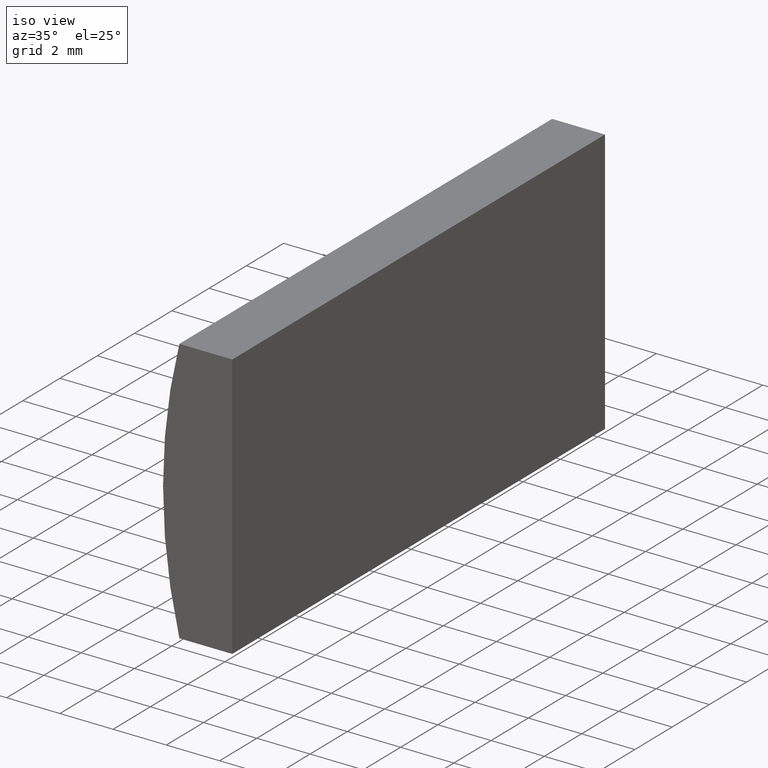
[diagram: clean part render]
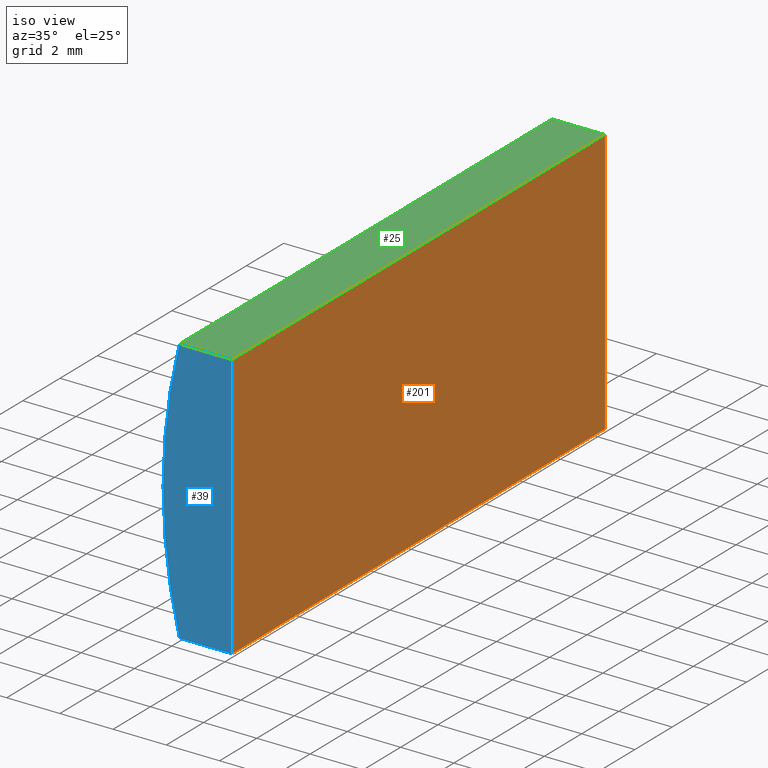
[diagram: same view with three faces highlighted in distinct colors, each labeled with its STEP entity id]
A machine part, iso view with three faces highlighted in distinct colors.
Their STEP definitions:

[orange] entity #201 — the highlighted planar face has unit normal (-1, 0, 0).
#7 = VECTOR ( 'NONE', #35, 1000.000000000000000 ) ;
#11 = VECTOR ( 'NONE', #164, 1000.000000000000000 ) ;
#12 = VECTOR ( 'NONE', #42, 1000.000000000000000 ) ;
#21 = ORIENTED_EDGE ( 'NONE', *, *, #129, .F. ) ;
#35 = DIRECTION ( 'NONE',  ( -3.469446951953616700E-016, -0.0000000000000000000, -1.000000000000000000 ) ) ;
#36 = FACE_OUTER_BOUND ( 'NONE', #91, .T. ) ;
#41 = LINE ( 'NONE', #126, #11 ) ;
#42 = DIRECTION ( 'NONE',  ( -0.0000000000000000000, -1.000000000000000000, -0.0000000000000000000 ) ) ;
#44 = LINE ( 'NONE', #80, #187 ) ;
#53 = LINE ( 'NONE', #103, #7 ) ;
#55 = VERTEX_POINT ( 'NONE', #176 ) ;
#61 = CARTESIAN_POINT ( 'NONE',  ( -13.72479566514874000, 20.00000000000000000, -4.999999999999992900 ) ) ;
#64 = CARTESIAN_POINT ( 'NONE',  ( -13.72479566514874000, 20.00000000000000000, -4.999999999999992900 ) ) ;
#71 = LINE ( 'NONE', #61, #12 ) ;
#75 = DIRECTION ( 'NONE',  ( 3.469446951953616700E-016, 0.0000000000000000000, 1.000000000000000000 ) ) ;
#77 = VERTEX_POINT ( 'NONE', #86 ) ;
#80 = CARTESIAN_POINT ( 'NONE',  ( -13.72479566514874000, 20.00000000000000000, -4.999999999999992900 ) ) ;
#86 = CARTESIAN_POINT ( 'NONE',  ( -13.72479566514873600, 20.00000000000000000, 5.000000000000000000 ) ) ;
#91 = EDGE_LOOP ( 'NONE', ( #151, #21, #136, #203 ) ) ;
#102 = VERTEX_POINT ( 'NONE', #179 ) ;
#103 = CARTESIAN_POINT ( 'NONE',  ( -13.72479566514874000, 0.0000000000000000000, -4.999999999999992900 ) ) ;
#123 = PLANE ( 'NONE',  #166 ) ;
#126 = CARTESIAN_POINT ( 'NONE',  ( -13.72479566514873600, 20.00000000000000000, 5.000000000000000000 ) ) ;
#129 = EDGE_CURVE ( 'NONE', #194, #55, #71, .T. ) ;
#130 = EDGE_CURVE ( 'NONE', #77, #102, #41, .T. ) ;
#136 = ORIENTED_EDGE ( 'NONE', *, *, #189, .F. ) ;
#147 = EDGE_CURVE ( 'NONE', #102, #55, #53, .T. ) ;
#151 = ORIENTED_EDGE ( 'NONE', *, *, #147, .T. ) ;
#155 = CARTESIAN_POINT ( 'NONE',  ( -13.72479566514874000, 20.00000000000000000, -4.999999999999992900 ) ) ;
#164 = DIRECTION ( 'NONE',  ( -0.0000000000000000000, -1.000000000000000000, -0.0000000000000000000 ) ) ;
#166 = AXIS2_PLACEMENT_3D ( 'NONE', #64, #170, #75 ) ;
#170 = DIRECTION ( 'NONE',  ( -1.000000000000000000, 0.0000000000000000000, 3.469446951953616700E-016 ) ) ;
#176 = CARTESIAN_POINT ( 'NONE',  ( -13.72479566514874000, 0.0000000000000000000, -4.999999999999992900 ) ) ;
#179 = CARTESIAN_POINT ( 'NONE',  ( -13.72479566514873600, 0.0000000000000000000, 5.000000000000000000 ) ) ;
#187 = VECTOR ( 'NONE', #191, 1000.000000000000000 ) ;
#189 = EDGE_CURVE ( 'NONE', #77, #194, #44, .T. ) ;
#191 = DIRECTION ( 'NONE',  ( -3.469446951953616700E-016, -0.0000000000000000000, -1.000000000000000000 ) ) ;
#194 = VERTEX_POINT ( 'NONE', #155 ) ;
#201 = ADVANCED_FACE ( 'NONE', ( #36 ), #123, .F. ) ;
#203 = ORIENTED_EDGE ( 'NONE', *, *, #130, .T. ) ;

[blue] entity #39 — the highlighted planar face has unit normal (0, 1, 0).
#1 = LINE ( 'NONE', #3, #178 ) ;
#3 = CARTESIAN_POINT ( 'NONE',  ( -15.71124527637792300, 0.0000000000000000000, 5.000000000000000000 ) ) ;
#7 = VECTOR ( 'NONE', #35, 1000.000000000000000 ) ;
#9 = CARTESIAN_POINT ( 'NONE',  ( -15.71124527637792000, 0.0000000000000000000, -5.000000000000000000 ) ) ;
#29 = FACE_OUTER_BOUND ( 'NONE', #105, .T. ) ;
#32 = VERTEX_POINT ( 'NONE', #183 ) ;
#35 = DIRECTION ( 'NONE',  ( -3.469446951953616700E-016, -0.0000000000000000000, -1.000000000000000000 ) ) ;
#37 = ORIENTED_EDGE ( 'NONE', *, *, #147, .F. ) ;
#38 = DIRECTION ( 'NONE',  ( 0.0000000000000000000, 1.000000000000000000, 0.0000000000000000000 ) ) ;
#39 = ADVANCED_FACE ( 'NONE', ( #29 ), #197, .F. ) ;
#49 = VERTEX_POINT ( 'NONE', #148 ) ;
#51 = DIRECTION ( 'NONE',  ( 1.000000000000000000, 0.0000000000000000000, 0.0000000000000000000 ) ) ;
#53 = LINE ( 'NONE', #103, #7 ) ;
#55 = VERTEX_POINT ( 'NONE', #176 ) ;
#60 = CARTESIAN_POINT ( 'NONE',  ( 4.355204334851265500, 0.0000000000000000000, 4.286263797015675000E-017 ) ) ;
#66 = EDGE_CURVE ( 'NONE', #55, #49, #93, .T. ) ;
#73 = CIRCLE ( 'NONE', #116, 20.68000000000000000 ) ;
#87 = EDGE_CURVE ( 'NONE', #32, #102, #1, .T. ) ;
#93 = LINE ( 'NONE', #9, #144 ) ;
#100 = DIRECTION ( 'NONE',  ( 0.0000000000000000000, 0.0000000000000000000, 1.000000000000000000 ) ) ;
#102 = VERTEX_POINT ( 'NONE', #179 ) ;
#103 = CARTESIAN_POINT ( 'NONE',  ( -13.72479566514874000, 0.0000000000000000000, -4.999999999999992900 ) ) ;
#105 = EDGE_LOOP ( 'NONE', ( #167, #162, #37, #171 ) ) ;
#116 = AXIS2_PLACEMENT_3D ( 'NONE', #60, #165, #100 ) ;
#141 = EDGE_CURVE ( 'NONE', #49, #32, #73, .T. ) ;
#144 = VECTOR ( 'NONE', #168, 1000.000000000000000 ) ;
#145 = AXIS2_PLACEMENT_3D ( 'NONE', #156, #38, #180 ) ;
#147 = EDGE_CURVE ( 'NONE', #102, #55, #53, .T. ) ;
#148 = CARTESIAN_POINT ( 'NONE',  ( -15.71124527637792000, 0.0000000000000000000, -5.000000000000000000 ) ) ;
#156 = CARTESIAN_POINT ( 'NONE',  ( 4.355204334851265500, 0.0000000000000000000, 4.286263797015675000E-017 ) ) ;
#162 = ORIENTED_EDGE ( 'NONE', *, *, #66, .F. ) ;
#165 = DIRECTION ( 'NONE',  ( 0.0000000000000000000, 1.000000000000000000, 0.0000000000000000000 ) ) ;
#167 = ORIENTED_EDGE ( 'NONE', *, *, #141, .F. ) ;
#168 = DIRECTION ( 'NONE',  ( -1.000000000000000000, -0.0000000000000000000, -3.493113474755377600E-015 ) ) ;
#171 = ORIENTED_EDGE ( 'NONE', *, *, #87, .F. ) ;
#176 = CARTESIAN_POINT ( 'NONE',  ( -13.72479566514874000, 0.0000000000000000000, -4.999999999999992900 ) ) ;
#178 = VECTOR ( 'NONE', #51, 1000.000000000000000 ) ;
#179 = CARTESIAN_POINT ( 'NONE',  ( -13.72479566514873600, 0.0000000000000000000, 5.000000000000000000 ) ) ;
#180 = DIRECTION ( 'NONE',  ( 0.0000000000000000000, -0.0000000000000000000, 1.000000000000000000 ) ) ;
#183 = CARTESIAN_POINT ( 'NONE',  ( -15.71124527637792300, 0.0000000000000000000, 5.000000000000000000 ) ) ;
#197 = PLANE ( 'NONE',  #145 ) ;

[green] entity #25 — the highlighted planar face has unit normal (0, 0, -1).
#1 = LINE ( 'NONE', #3, #178 ) ;
#3 = CARTESIAN_POINT ( 'NONE',  ( -15.71124527637792300, 0.0000000000000000000, 5.000000000000000000 ) ) ;
#4 = EDGE_LOOP ( 'NONE', ( #119, #135, #52, #33 ) ) ;
#11 = VECTOR ( 'NONE', #164, 1000.000000000000000 ) ;
#13 = DIRECTION ( 'NONE',  ( -0.0000000000000000000, -1.000000000000000000, -0.0000000000000000000 ) ) ;
#25 = ADVANCED_FACE ( 'NONE', ( #128 ), #88, .F. ) ;
#32 = VERTEX_POINT ( 'NONE', #183 ) ;
#33 = ORIENTED_EDGE ( 'NONE', *, *, #115, .T. ) ;
#41 = LINE ( 'NONE', #126, #11 ) ;
#48 = CARTESIAN_POINT ( 'NONE',  ( -15.71124527637792300, 20.00000000000000000, 5.000000000000000000 ) ) ;
#50 = CARTESIAN_POINT ( 'NONE',  ( -15.71124527637792300, 20.00000000000000000, 5.000000000000000000 ) ) ;
#51 = DIRECTION ( 'NONE',  ( 1.000000000000000000, 0.0000000000000000000, 0.0000000000000000000 ) ) ;
#52 = ORIENTED_EDGE ( 'NONE', *, *, #74, .F. ) ;
#68 = LINE ( 'NONE', #78, #97 ) ;
#74 = EDGE_CURVE ( 'NONE', #114, #77, #68, .T. ) ;
#77 = VERTEX_POINT ( 'NONE', #86 ) ;
#78 = CARTESIAN_POINT ( 'NONE',  ( -15.71124527637792300, 20.00000000000000000, 5.000000000000000000 ) ) ;
#83 = DIRECTION ( 'NONE',  ( 1.000000000000000000, 0.0000000000000000000, 0.0000000000000000000 ) ) ;
#86 = CARTESIAN_POINT ( 'NONE',  ( -13.72479566514873600, 20.00000000000000000, 5.000000000000000000 ) ) ;
#87 = EDGE_CURVE ( 'NONE', #32, #102, #1, .T. ) ;
#88 = PLANE ( 'NONE',  #138 ) ;
#97 = VECTOR ( 'NONE', #83, 1000.000000000000000 ) ;
#102 = VERTEX_POINT ( 'NONE', #179 ) ;
#114 = VERTEX_POINT ( 'NONE', #195 ) ;
#115 = EDGE_CURVE ( 'NONE', #114, #32, #200, .T. ) ;
#119 = ORIENTED_EDGE ( 'NONE', *, *, #87, .T. ) ;
#122 = DIRECTION ( 'NONE',  ( -1.000000000000000000, 0.0000000000000000000, -0.0000000000000000000 ) ) ;
#126 = CARTESIAN_POINT ( 'NONE',  ( -13.72479566514873600, 20.00000000000000000, 5.000000000000000000 ) ) ;
#128 = FACE_OUTER_BOUND ( 'NONE', #4, .T. ) ;
#130 = EDGE_CURVE ( 'NONE', #77, #102, #41, .T. ) ;
#135 = ORIENTED_EDGE ( 'NONE', *, *, #130, .F. ) ;
#137 = DIRECTION ( 'NONE',  ( 0.0000000000000000000, 0.0000000000000000000, -1.000000000000000000 ) ) ;
#138 = AXIS2_PLACEMENT_3D ( 'NONE', #48, #137, #122 ) ;
#150 = VECTOR ( 'NONE', #13, 1000.000000000000000 ) ;
#164 = DIRECTION ( 'NONE',  ( -0.0000000000000000000, -1.000000000000000000, -0.0000000000000000000 ) ) ;
#178 = VECTOR ( 'NONE', #51, 1000.000000000000000 ) ;
#179 = CARTESIAN_POINT ( 'NONE',  ( -13.72479566514873600, 0.0000000000000000000, 5.000000000000000000 ) ) ;
#183 = CARTESIAN_POINT ( 'NONE',  ( -15.71124527637792300, 0.0000000000000000000, 5.000000000000000000 ) ) ;
#195 = CARTESIAN_POINT ( 'NONE',  ( -15.71124527637792300, 20.00000000000000000, 5.000000000000000000 ) ) ;
#200 = LINE ( 'NONE', #50, #150 ) ;